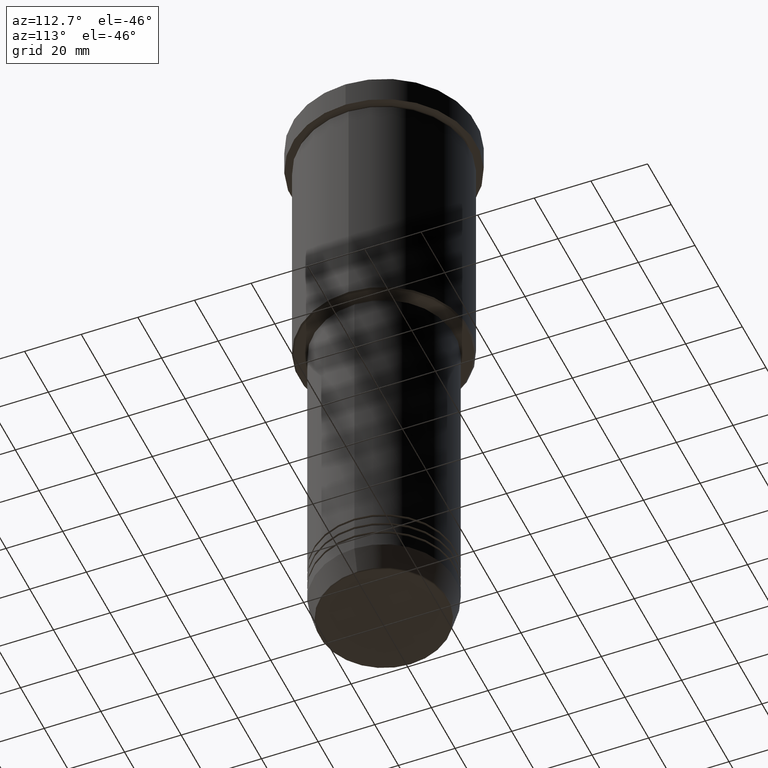
[diagram: clean part render]
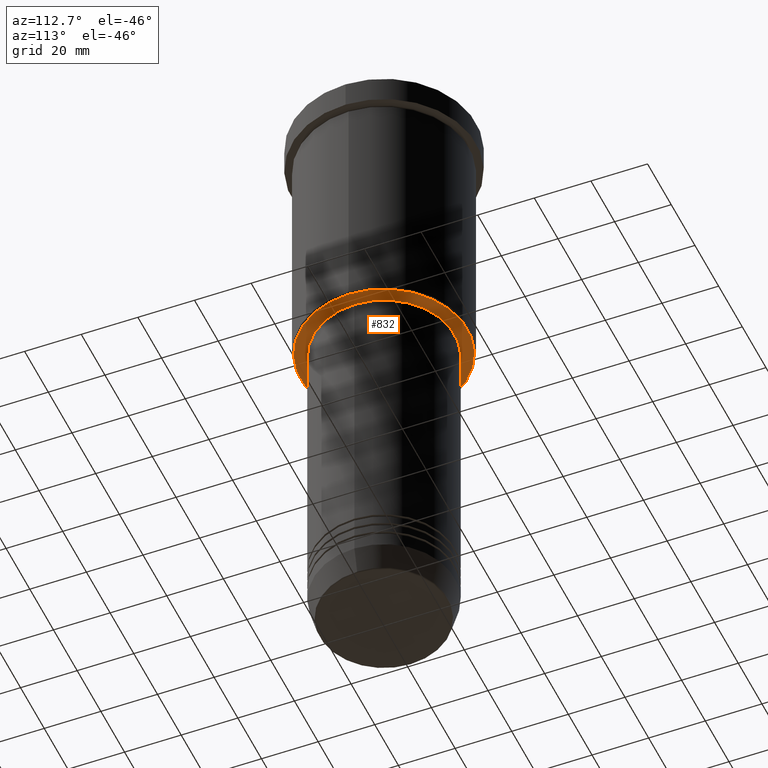
[diagram: same view with one face highlighted and labeled with its STEP entity id]
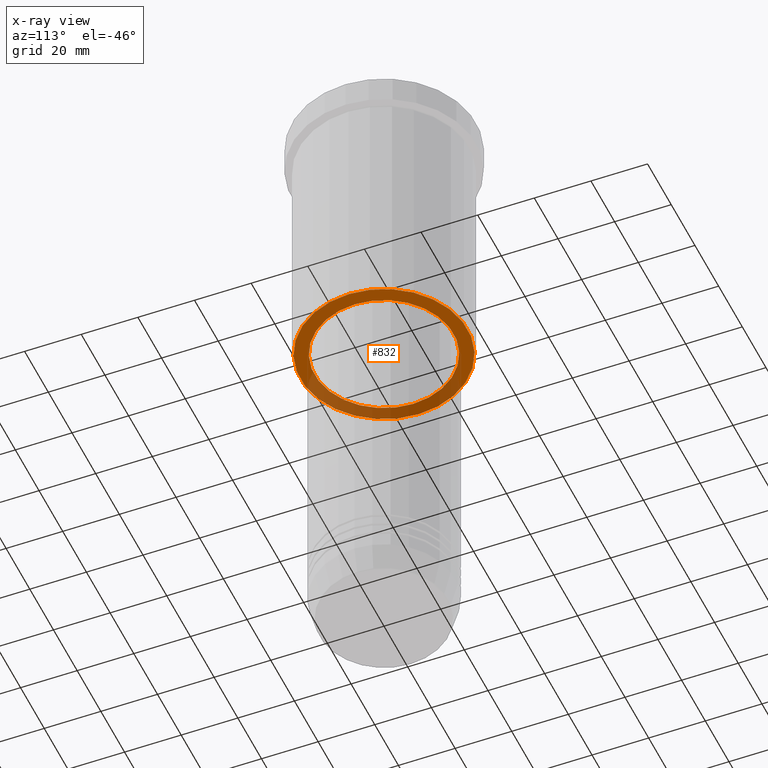
[diagram: x-ray of the same camera — body ghosted, the highlighted face saturated]
A machine part, auxiliary view. The second image highlights one B-rep face of the part: STEP entity #832.
The next image is the same camera in x-ray: the body ghosted, the highlighted face saturated — about 36% of this face is hidden behind the body in this view.
In plain terms, the highlighted planar face has unit normal (0, 0, -1).
Its self-contained STEP definition (entity closure, byte-faithful):
#28 = AXIS2_PLACEMENT_3D ( 'NONE', #609, #714, #1172 ) ;
#45 = DIRECTION ( 'NONE',  ( 0.000000000000000000, 0.000000000000000000, -1.000000000000000000 ) ) ;
#85 = CARTESIAN_POINT ( 'NONE',  ( -29.50000000000002132, 3.643324227463376968E-15, -96.00000000000000000 ) ) ;
#116 = DIRECTION ( 'NONE',  ( 0.000000000000000000, 0.000000000000000000, -1.000000000000000000 ) ) ;
#118 = VERTEX_POINT ( 'NONE', #1018 ) ;
#119 = AXIS2_PLACEMENT_3D ( 'NONE', #960, #389, #486 ) ;
#140 = VERTEX_POINT ( 'NONE', #559 ) ;
#213 = EDGE_CURVE ( 'NONE', #118, #1059, #1009, .T. ) ;
#225 = DIRECTION ( 'NONE',  ( -1.000000000000000000, 0.000000000000000000, 0.000000000000000000 ) ) ;
#243 = ORIENTED_EDGE ( 'NONE', *, *, #1081, .T. ) ;
#277 = CIRCLE ( 'NONE', #1072, 24.50000000000000000 ) ;
#323 = ORIENTED_EDGE ( 'NONE', *, *, #691, .T. ) ;
#389 = DIRECTION ( 'NONE',  ( 0.000000000000000000, 0.000000000000000000, -1.000000000000000000 ) ) ;
#395 = DIRECTION ( 'NONE',  ( -1.000000000000000000, 0.000000000000000000, -0.000000000000000000 ) ) ;
#406 = CIRCLE ( 'NONE', #663, 29.50000000000002132 ) ;
#481 = EDGE_LOOP ( 'NONE', ( #243, #925 ) ) ;
#486 = DIRECTION ( 'NONE',  ( -1.000000000000000000, 0.000000000000000000, 0.000000000000000000 ) ) ;
#498 = PLANE ( 'NONE',  #1050 ) ;
#523 = EDGE_CURVE ( 'NONE', #140, #1091, #1010, .T. ) ;
#559 = CARTESIAN_POINT ( 'NONE',  ( -24.50000000000000000, 3.000384657911015469E-15, -96.00000000000000000 ) ) ;
#609 = CARTESIAN_POINT ( 'NONE',  ( 0.000000000000000000, 0.000000000000000000, -96.00000000000000000 ) ) ;
#626 = DIRECTION ( 'NONE',  ( -0.000000000000000000, -0.000000000000000000, 1.000000000000000000 ) ) ;
#662 = ORIENTED_EDGE ( 'NONE', *, *, #213, .T. ) ;
#663 = AXIS2_PLACEMENT_3D ( 'NONE', #741, #116, #225 ) ;
#691 = EDGE_CURVE ( 'NONE', #1059, #118, #406, .T. ) ;
#714 = DIRECTION ( 'NONE',  ( -0.000000000000000000, -0.000000000000000000, 1.000000000000000000 ) ) ;
#741 = CARTESIAN_POINT ( 'NONE',  ( 0.000000000000000000, 0.000000000000000000, -96.00000000000000000 ) ) ;
#748 = CARTESIAN_POINT ( 'NONE',  ( 24.50000000000000000, 0.000000000000000000, -96.00000000000000000 ) ) ;
#761 = FACE_BOUND ( 'NONE', #481, .T. ) ;
#770 = EDGE_LOOP ( 'NONE', ( #662, #323 ) ) ;
#827 = CARTESIAN_POINT ( 'NONE',  ( 0.000000000000000000, 0.000000000000000000, -96.00000000000000000 ) ) ;
#832 = ADVANCED_FACE ( 'NONE', ( #1049, #761 ), #498, .T. ) ;
#873 = CARTESIAN_POINT ( 'NONE',  ( 0.000000000000000000, 30.00000000000000000, -96.00000000000000000 ) ) ;
#925 = ORIENTED_EDGE ( 'NONE', *, *, #523, .T. ) ;
#960 = CARTESIAN_POINT ( 'NONE',  ( 0.000000000000000000, 0.000000000000000000, -96.00000000000000000 ) ) ;
#1009 = CIRCLE ( 'NONE', #119, 29.50000000000002132 ) ;
#1010 = CIRCLE ( 'NONE', #28, 24.50000000000000000 ) ;
#1018 = CARTESIAN_POINT ( 'NONE',  ( 29.50000000000002132, 0.000000000000000000, -96.00000000000000000 ) ) ;
#1049 = FACE_OUTER_BOUND ( 'NONE', #770, .T. ) ;
#1050 = AXIS2_PLACEMENT_3D ( 'NONE', #873, #45, #395 ) ;
#1059 = VERTEX_POINT ( 'NONE', #85 ) ;
#1072 = AXIS2_PLACEMENT_3D ( 'NONE', #827, #626, #1183 ) ;
#1081 = EDGE_CURVE ( 'NONE', #1091, #140, #277, .T. ) ;
#1091 = VERTEX_POINT ( 'NONE', #748 ) ;
#1172 = DIRECTION ( 'NONE',  ( 1.000000000000000000, 0.000000000000000000, 0.000000000000000000 ) ) ;
#1183 = DIRECTION ( 'NONE',  ( 1.000000000000000000, 0.000000000000000000, 0.000000000000000000 ) ) ;